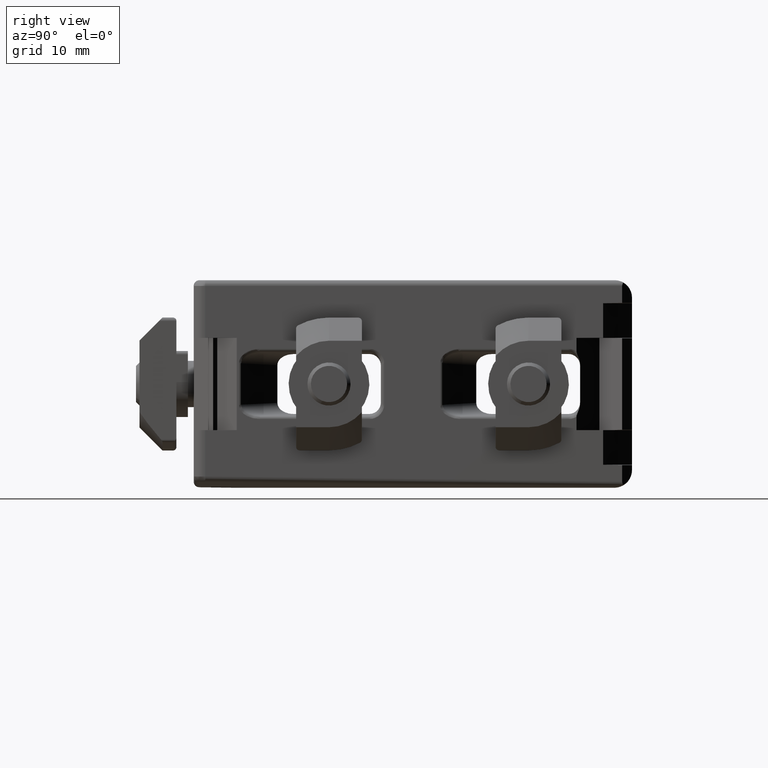
[diagram: clean part render]
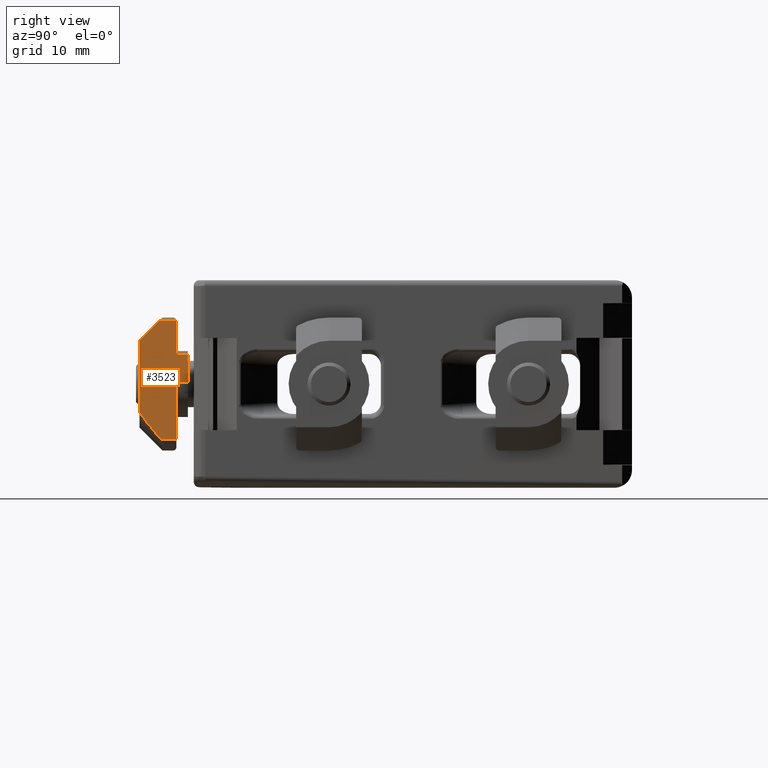
[diagram: same view with one face highlighted and labeled with its STEP entity id]
A machine part, right view. The second image highlights one B-rep face of the part: STEP entity #3523.
In plain terms, the highlighted planar face has unit normal (-1, 0, -0.006).
Its self-contained STEP definition (entity closure, byte-faithful):
#96=(
BOUNDED_CURVE()
B_SPLINE_CURVE(2,(#6862,#6863,#6864),.UNSPECIFIED.,.F.,.F.)
B_SPLINE_CURVE_WITH_KNOTS((3,3),(-0.508258465814216,-0.216183642453408),
 .UNSPECIFIED.)
CURVE()
GEOMETRIC_REPRESENTATION_ITEM()
RATIONAL_B_SPLINE_CURVE((1.78787878787886,1.63424630753202,1.39700341608917))
REPRESENTATION_ITEM($)
);
#179=PLANE($,#3846);
#428=LINE($,#6737,#716);
#433=LINE($,#6752,#721);
#457=LINE($,#6856,#745);
#458=LINE($,#6858,#746);
#459=LINE($,#6860,#747);
#460=LINE($,#6866,#748);
#461=LINE($,#6874,#749);
#462=LINE($,#6876,#750);
#463=LINE($,#6877,#751);
#716=VECTOR($,#4671,2.9);
#721=VECTOR($,#4682,4.79542785973477);
#745=VECTOR($,#4752,1.5);
#746=VECTOR($,#4753,2.40416305603427);
#747=VECTOR($,#4754,6.18721152139077);
#748=VECTOR($,#4755,1.31506193523849);
#749=VECTOR($,#4756,1.);
#750=VECTOR($,#4757,2.39999999999998);
#751=VECTOR($,#4758,1.);
#903=B_SPLINE_CURVE_WITH_KNOTS($,3,(#6867,#6868,#6869,#6870,#6871,#6872),
 .UNSPECIFIED.,.F.,.F.,(4,2,4),(-0.162086390937557,-0.158982331502981,-0.145351441046814),
 .UNSPECIFIED.);
#1083=FACE_OUTER_BOUND($,#1292,.T.);
#1292=EDGE_LOOP($,(#3203,#3204,#3205,#3206,#3207,#3208,#3209,#3210,#3211,
#3212,#3213));
#1747=VERTEX_POINT($,#6735);
#1748=VERTEX_POINT($,#6736);
#1754=VERTEX_POINT($,#6749);
#1755=VERTEX_POINT($,#6751);
#1783=VERTEX_POINT($,#6855);
#1784=VERTEX_POINT($,#6857);
#1785=VERTEX_POINT($,#6859);
#1786=VERTEX_POINT($,#6861);
#1787=VERTEX_POINT($,#6865);
#1788=VERTEX_POINT($,#6873);
#1789=VERTEX_POINT($,#6875);
#2221=EDGE_CURVE($,#1747,#1748,#428,.T.);
#2228=EDGE_CURVE($,#1754,#1755,#433,.T.);
#2269=EDGE_CURVE($,#1747,#1783,#457,.T.);
#2270=EDGE_CURVE($,#1783,#1784,#458,.T.);
#2271=EDGE_CURVE($,#1784,#1785,#459,.T.);
#2272=EDGE_CURVE($,#1785,#1786,#96,.T.);
#2273=EDGE_CURVE($,#1786,#1787,#460,.T.);
#2274=EDGE_CURVE($,#1787,#1755,#903,.T.);
#2275=EDGE_CURVE($,#1788,#1754,#461,.T.);
#2276=EDGE_CURVE($,#1789,#1788,#462,.T.);
#2277=EDGE_CURVE($,#1789,#1748,#463,.T.);
#3203=ORIENTED_EDGE($,*,*,#2221,.F.);
#3204=ORIENTED_EDGE($,*,*,#2269,.T.);
#3205=ORIENTED_EDGE($,*,*,#2270,.T.);
#3206=ORIENTED_EDGE($,*,*,#2271,.T.);
#3207=ORIENTED_EDGE($,*,*,#2272,.T.);
#3208=ORIENTED_EDGE($,*,*,#2273,.T.);
#3209=ORIENTED_EDGE($,*,*,#2274,.T.);
#3210=ORIENTED_EDGE($,*,*,#2228,.F.);
#3211=ORIENTED_EDGE($,*,*,#2275,.F.);
#3212=ORIENTED_EDGE($,*,*,#2276,.F.);
#3213=ORIENTED_EDGE($,*,*,#2277,.T.);
#3523=ADVANCED_FACE($,(#1083),#179,.F.);
#3846=AXIS2_PLACEMENT_3D($,#6854,#4750,#4751);
#4671=DIRECTION($,(-1.,0.,0.));
#4682=DIRECTION($,(-1.,0.,0.));
#4750=DIRECTION('center_axis',(0.,-1.,0.));
#4751=DIRECTION('ref_axis',(0.,0.,-1.));
#4752=DIRECTION($,(0.,0.,-1.));
#4753=DIRECTION($,(-0.707106781186549,0.,-0.707106781186546));
#4754=DIRECTION($,(-1.,0.,0.));
#4755=DIRECTION($,(0.,0.,1.));
#4756=DIRECTION($,(0.,0.,-1.));
#4757=DIRECTION($,(-1.,0.,0.));
#4758=DIRECTION($,(0.,0.,-1.));
#6735=CARTESIAN_POINT('',(5.45,2.85,3.2));
#6736=CARTESIAN_POINT('',(2.55,2.85,3.2));
#6737=CARTESIAN_POINT($,(5.45,2.85,3.2));
#6749=CARTESIAN_POINT('',(0.15,2.85,3.2));
#6751=CARTESIAN_POINT('',(-4.64542785973477,2.85,3.2));
#6752=CARTESIAN_POINT($,(0.15,2.85,3.2));
#6854=CARTESIAN_POINT('Origin',(5.75,2.85,3.2));
#6855=CARTESIAN_POINT('',(5.45,2.85,1.7));
#6856=CARTESIAN_POINT($,(5.45,2.85,3.2));
#6857=CARTESIAN_POINT('',(3.75,2.85,0.));
#6858=CARTESIAN_POINT($,(5.45,2.85,1.7));
#6859=CARTESIAN_POINT('',(-2.43721152139077,2.85,0.));
#6860=CARTESIAN_POINT($,(3.75,2.85,0.));
#6861=CARTESIAN_POINT('',(-4.81663783151368,2.85,1.84665078417162));
#6862=CARTESIAN_POINT('Ctrl Pts',(-2.43721152139037,2.85,-2.62671240690541E-013));
#6863=CARTESIAN_POINT('Ctrl Pts',(-3.39186884934711,2.85,0.620453823646687));
#6864=CARTESIAN_POINT('Ctrl Pts',(-4.81663783151367,2.85,1.84665078417162));
#6865=CARTESIAN_POINT('',(-4.81663783151692,2.85,3.1617127194101));
#6866=CARTESIAN_POINT($,(-4.81663783151692,2.85,1.84665078417162));
#6867=CARTESIAN_POINT('Ctrl Pts',(-4.81663783151692,2.85,3.1617127194101));
#6868=CARTESIAN_POINT('Ctrl Pts',(-4.80668296917499,2.85,3.16651348611546));
#6869=CARTESIAN_POINT('Ctrl Pts',(-4.79671629475316,2.85,3.17075636864087));
#6870=CARTESIAN_POINT('Ctrl Pts',(-4.74456221276599,2.85,3.19054811881123));
#6871=CARTESIAN_POINT('Ctrl Pts',(-4.69086416125533,2.85,3.2));
#6872=CARTESIAN_POINT('Ctrl Pts',(-4.64542785973477,2.85,3.2));
#6873=CARTESIAN_POINT('',(0.150000000000021,2.85,4.2));
#6874=CARTESIAN_POINT($,(0.150000000000021,2.85,4.2));
#6875=CARTESIAN_POINT('',(2.55,2.85,4.2));
#6876=CARTESIAN_POINT($,(2.55,2.85,4.2));
#6877=CARTESIAN_POINT($,(2.55,2.85,4.2));